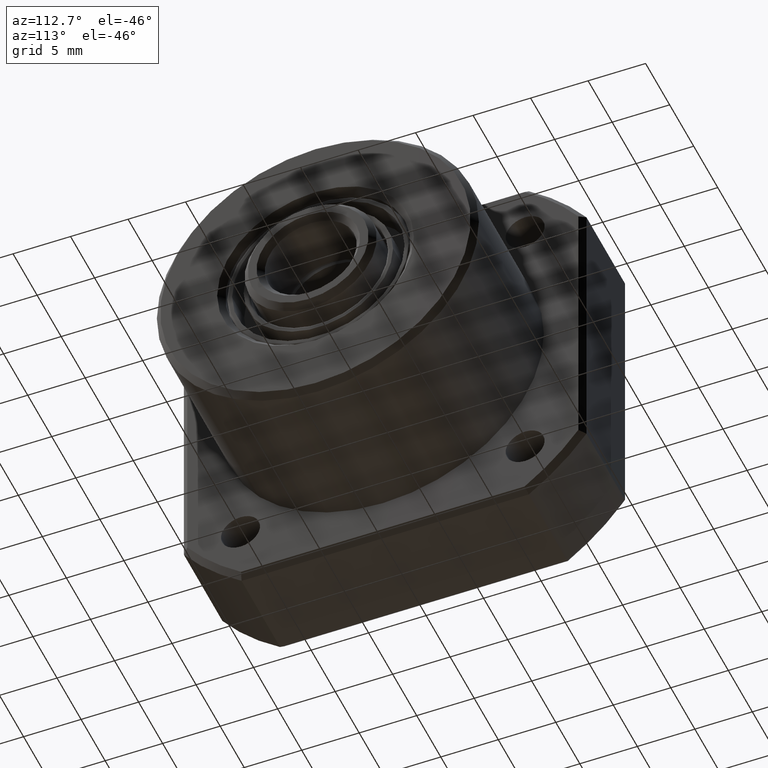
[diagram: clean part render]
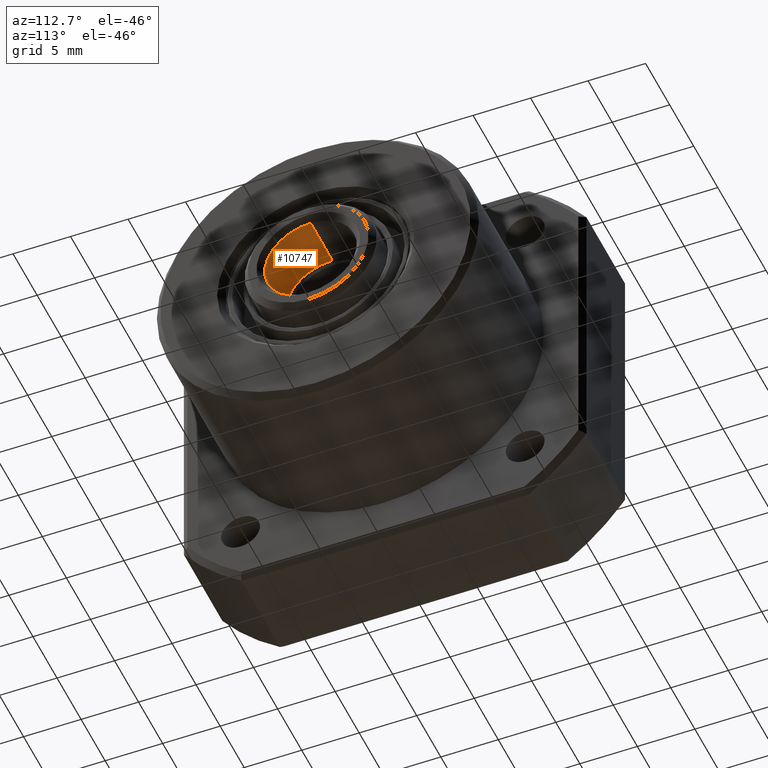
[diagram: same view with one face highlighted and labeled with its STEP entity id]
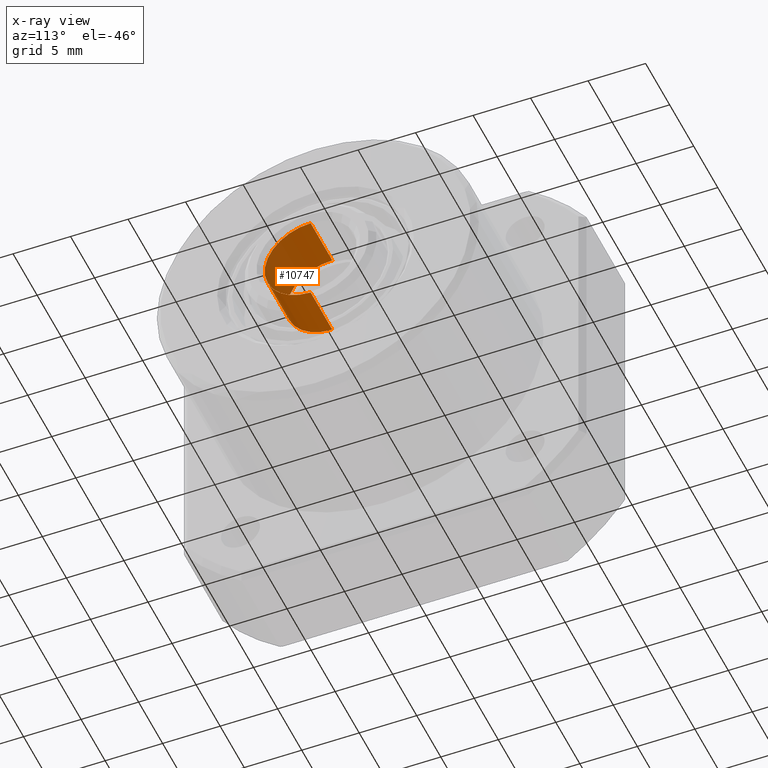
[diagram: x-ray of the same camera — body ghosted, the highlighted face saturated]
A machine part, auxiliary view. The second image highlights one B-rep face of the part: STEP entity #10747.
The next image is the same camera in x-ray: the body ghosted, the highlighted face saturated — about 0% of this face is hidden behind the body in this view.
In plain terms, the highlighted cylindrical surface (partial cylindrical patch) has radius 4 mm, axis along (-1, -0, -0).
Its self-contained STEP definition (entity closure, byte-faithful):
#10679 = VERTEX_POINT ( 'NONE', #35369 ) ;
#10680 = VERTEX_POINT ( 'NONE', #35368 ) ;
#10747 = ADVANCED_FACE ( 'NONE', ( #35525 ), #35524, .F. ) ;
#10751 = EDGE_LOOP ( 'NONE', ( #10851, #10852, #10854, #10856 ) ) ;
#10768 = EDGE_CURVE ( 'NONE', #10769, #10770, #35598, .T. ) ;
#10769 = VERTEX_POINT ( 'NONE', #35586 ) ;
#10770 = VERTEX_POINT ( 'NONE', #35584 ) ;
#10851 = ORIENTED_EDGE ( 'NONE', *, *, #10768, .T. ) ;
#10852 = ORIENTED_EDGE ( 'NONE', *, *, #10853, .T. ) ;
#10853 = EDGE_CURVE ( 'NONE', #10770, #10680, #35753, .T. ) ;
#10854 = ORIENTED_EDGE ( 'NONE', *, *, #10855, .T. ) ;
#10855 = EDGE_CURVE ( 'NONE', #10680, #10679, #35744, .T. ) ;
#10856 = ORIENTED_EDGE ( 'NONE', *, *, #10858, .F. ) ;
#10858 = EDGE_CURVE ( 'NONE', #10769, #10679, #35737, .T. ) ;
#35368 = CARTESIAN_POINT ( 'NONE',  ( 19.50000000000000700, 4.898425415289509000E-016, -4.000000000000000000 ) ) ;
#35369 = CARTESIAN_POINT ( 'NONE',  ( 19.50000000000000700, 0.0000000000000000000, 4.000000000000000000 ) ) ;
#35512 = DIRECTION ( 'NONE',  ( 0.0000000000000000000, 0.0000000000000000000, 1.000000000000000000 ) ) ;
#35514 = DIRECTION ( 'NONE',  ( -1.000000000000000000, -0.0000000000000000000, -0.0000000000000000000 ) ) ;
#35516 = CARTESIAN_POINT ( 'NONE',  ( 3.938478467263685000, 0.0000000000000000000, 1.371465867581338600E-030 ) ) ;
#35518 = AXIS2_PLACEMENT_3D ( 'NONE', #35516, #35514, #35512 ) ;
#35524 = CYLINDRICAL_SURFACE ( 'NONE', #35518, 4.000000000000000000 ) ;
#35525 = FACE_OUTER_BOUND ( 'NONE', #10751, .T. ) ;
#35584 = CARTESIAN_POINT ( 'NONE',  ( 24.00000000000000400, 4.898425415289509000E-016, -4.000000000000000000 ) ) ;
#35586 = CARTESIAN_POINT ( 'NONE',  ( 24.00000000000000400, 0.0000000000000000000, 4.000000000000000000 ) ) ;
#35587 = DIRECTION ( 'NONE',  ( 0.0000000000000000000, 0.0000000000000000000, 1.000000000000000000 ) ) ;
#35588 = DIRECTION ( 'NONE',  ( 1.000000000000000000, -0.0000000000000000000, -0.0000000000000000000 ) ) ;
#35589 = CARTESIAN_POINT ( 'NONE',  ( 24.00000000000000400, 0.0000000000000000000, 1.371465867581338600E-030 ) ) ;
#35590 = AXIS2_PLACEMENT_3D ( 'NONE', #35589, #35588, #35587 ) ;
#35598 = CIRCLE ( 'NONE', #35590, 4.000000000000000000 ) ;
#35731 = DIRECTION ( 'NONE',  ( -1.000000000000000000, -0.0000000000000000000, -0.0000000000000000000 ) ) ;
#35732 = VECTOR ( 'NONE', #35731, 1000.000000000000000 ) ;
#35735 = CARTESIAN_POINT ( 'NONE',  ( 3.938478467263685000, 0.0000000000000000000, 4.000000000000000000 ) ) ;
#35737 = LINE ( 'NONE', #35735, #35732 ) ;
#35738 = DIRECTION ( 'NONE',  ( 0.0000000000000000000, 0.0000000000000000000, -1.000000000000000000 ) ) ;
#35739 = DIRECTION ( 'NONE',  ( -1.000000000000000000, -0.0000000000000000000, -0.0000000000000000000 ) ) ;
#35740 = CARTESIAN_POINT ( 'NONE',  ( 19.50000000000000700, 0.0000000000000000000, 1.371465867581338600E-030 ) ) ;
#35742 = AXIS2_PLACEMENT_3D ( 'NONE', #35740, #35739, #35738 ) ;
#35744 = CIRCLE ( 'NONE', #35742, 4.000000000000000000 ) ;
#35750 = DIRECTION ( 'NONE',  ( -1.000000000000000000, -0.0000000000000000000, -0.0000000000000000000 ) ) ;
#35751 = VECTOR ( 'NONE', #35750, 1000.000000000000000 ) ;
#35752 = CARTESIAN_POINT ( 'NONE',  ( 3.938478467263685000, 4.898425415289509000E-016, -4.000000000000000000 ) ) ;
#35753 = LINE ( 'NONE', #35752, #35751 ) ;